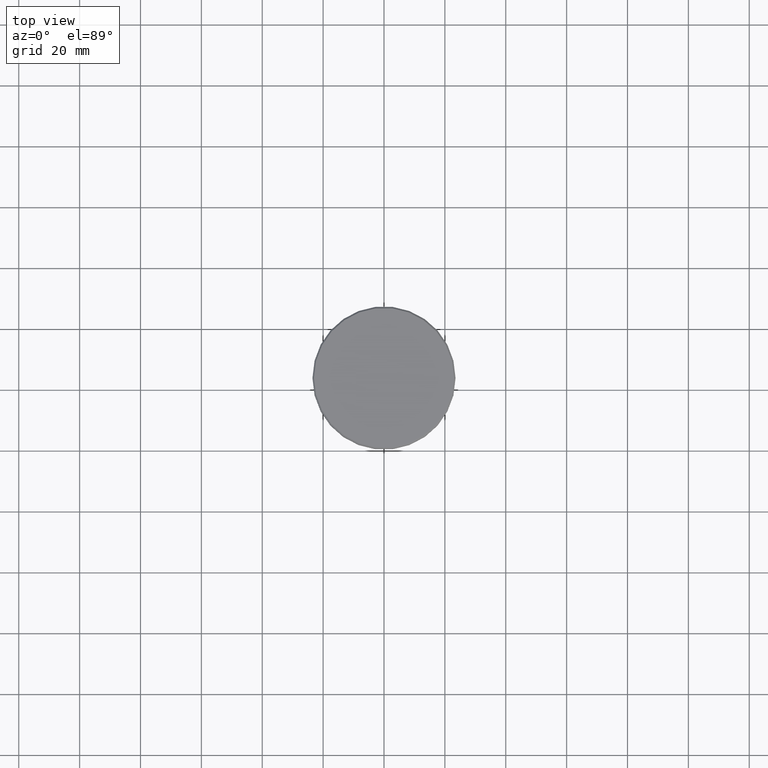
[diagram: clean part render]
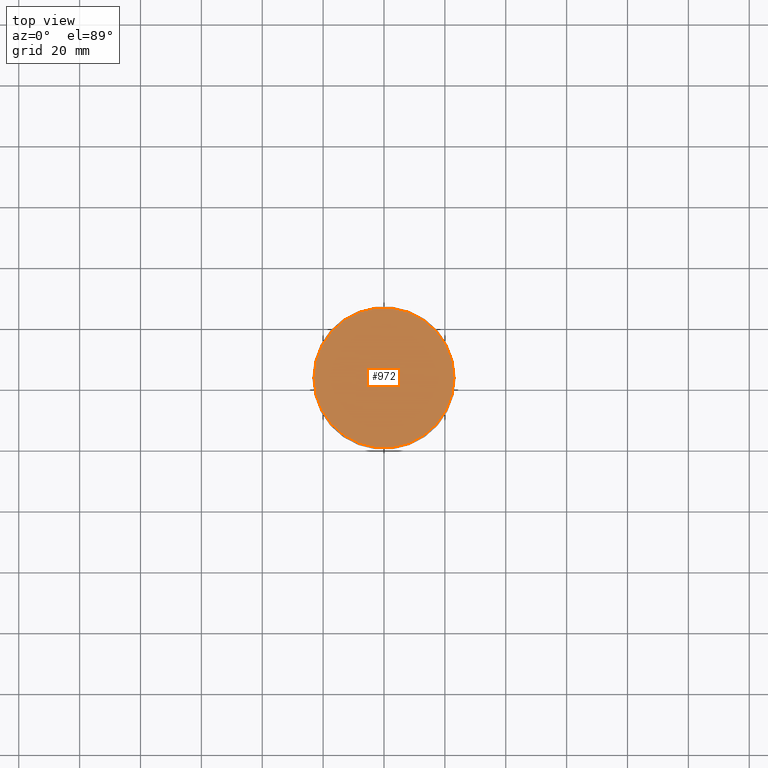
[diagram: same view with one face highlighted and labeled with its STEP entity id]
A machine part, top view. The second image highlights one B-rep face of the part: STEP entity #972.
In plain terms, the highlighted planar face has unit normal (0, -0, 1).
Its self-contained STEP definition (entity closure, byte-faithful):
#20 = DIRECTION ( 'NONE',  ( 0.000000000000000000, -0.000000000000000000, 1.000000000000000000 ) ) ;
#96 = VERTEX_POINT ( 'NONE', #709 ) ;
#100 = AXIS2_PLACEMENT_3D ( 'NONE', #449, #708, #716 ) ;
#194 = CIRCLE ( 'NONE', #100, 22.99999999999991118 ) ;
#216 = ORIENTED_EDGE ( 'NONE', *, *, #519, .T. ) ;
#287 = EDGE_LOOP ( 'NONE', ( #216, #756 ) ) ;
#359 = EDGE_CURVE ( 'NONE', #907, #96, #194, .T. ) ;
#449 = CARTESIAN_POINT ( 'NONE',  ( 0.000000000000000000, 0.000000000000000000, 0.000000000000000000 ) ) ;
#515 = DIRECTION ( 'NONE',  ( 1.000000000000000000, 0.000000000000000000, 0.000000000000000000 ) ) ;
#519 = EDGE_CURVE ( 'NONE', #96, #907, #702, .T. ) ;
#545 = FACE_OUTER_BOUND ( 'NONE', #287, .T. ) ;
#664 = AXIS2_PLACEMENT_3D ( 'NONE', #722, #695, #515 ) ;
#695 = DIRECTION ( 'NONE',  ( -0.000000000000000000, -0.000000000000000000, 1.000000000000000000 ) ) ;
#702 = CIRCLE ( 'NONE', #664, 22.99999999999991118 ) ;
#708 = DIRECTION ( 'NONE',  ( -0.000000000000000000, -0.000000000000000000, 1.000000000000000000 ) ) ;
#709 = CARTESIAN_POINT ( 'NONE',  ( -22.99999999999991118, 0.000000000000000000, 0.000000000000000000 ) ) ;
#716 = DIRECTION ( 'NONE',  ( 1.000000000000000000, 0.000000000000000000, 0.000000000000000000 ) ) ;
#722 = CARTESIAN_POINT ( 'NONE',  ( 0.000000000000000000, 0.000000000000000000, 0.000000000000000000 ) ) ;
#756 = ORIENTED_EDGE ( 'NONE', *, *, #359, .T. ) ;
#907 = VERTEX_POINT ( 'NONE', #1134 ) ;
#936 = AXIS2_PLACEMENT_3D ( 'NONE', #1002, #20, #1175 ) ;
#972 = ADVANCED_FACE ( 'NONE', ( #545 ), #1180, .T. ) ;
#1002 = CARTESIAN_POINT ( 'NONE',  ( 0.000000000000000000, 0.000000000000000000, 0.000000000000000000 ) ) ;
#1134 = CARTESIAN_POINT ( 'NONE',  ( 22.99999999999991118, 2.847303808017590617E-15, 0.000000000000000000 ) ) ;
#1175 = DIRECTION ( 'NONE',  ( 1.000000000000000000, 0.000000000000000000, 0.000000000000000000 ) ) ;
#1180 = PLANE ( 'NONE',  #936 ) ;